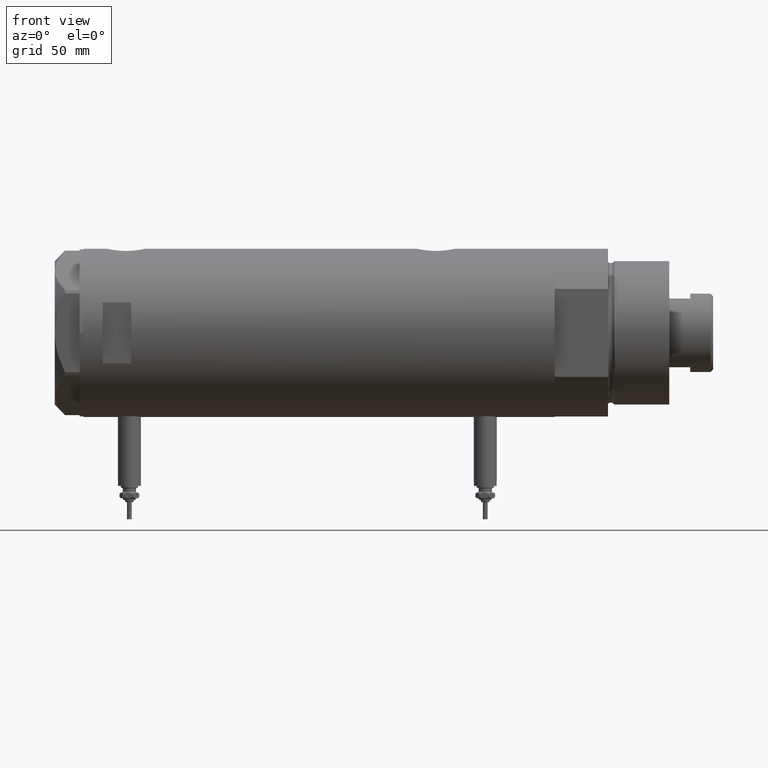
[diagram: clean part render]
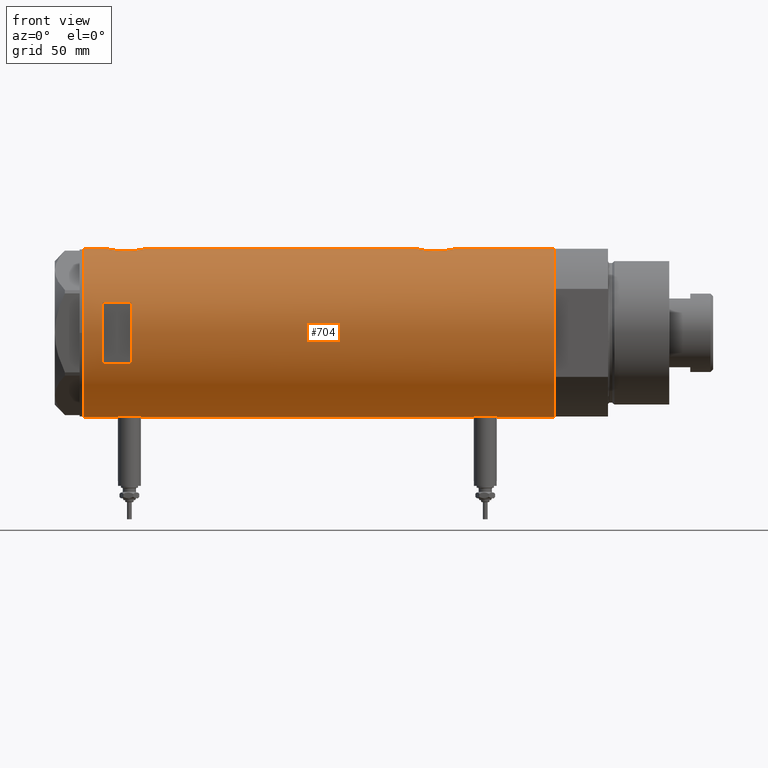
[diagram: same view with one face highlighted and labeled with its STEP entity id]
A machine part, front view. The second image highlights one B-rep face of the part: STEP entity #704.
In plain terms, the highlighted cylindrical surface (partial cylindrical patch) has radius 44 mm, axis along (-1, -0, 0).
Its self-contained STEP definition (entity closure, byte-faithful):
#75 = CARTESIAN_POINT ( 'NONE',  ( 42.89003040145176726, -9.821289533110936887, -59.13508371670006625 ) ) ;
#89 = CARTESIAN_POINT ( 'NONE',  ( -43.80686114384899810, -4.128296917151111245, 94.48984144871687363 ) ) ;
#125 = CARTESIAN_POINT ( 'NONE',  ( -44.00000000000000711, -0.4080709675389188051, 92.95000000000001705 ) ) ;
#138 = CARTESIAN_POINT ( 'NONE',  ( 43.88549648731377317, -3.229309612650767658, 110.3866430248638864 ) ) ;
#163 = CARTESIAN_POINT ( 'NONE',  ( 42.84850870634925712, -10.00026508230968858, -61.75583915121742251 ) ) ;
#178 = CARTESIAN_POINT ( 'NONE',  ( -43.58327167020068771, -6.041691433183236981, 100.8132755078336658 ) ) ;
#187 = CARTESIAN_POINT ( 'NONE',  ( -43.97059312650996787, -1.620278982928820444, -92.93978691385871116 ) ) ;
#196 = CARTESIAN_POINT ( 'NONE',  ( 43.07447880731471201, -8.980869115410033743, 105.3470997020410636 ) ) ;
#215 = CARTESIAN_POINT ( 'NONE',  ( -43.88927795770376861, -3.124736516396338981, 93.78332595076190614 ) ) ;
#216 = VERTEX_POINT ( 'NONE', #1802 ) ;
#231 = CARTESIAN_POINT ( 'NONE',  ( 44.00000000000000000, -3.917104602093038540E-21, 110.9000000000000057 ) ) ;
#252 = CARTESIAN_POINT ( 'NONE',  ( -43.58327167020068060, -6.041691433183235205, -85.28672449216634277 ) ) ;
#271 = CARTESIAN_POINT ( 'NONE',  ( 0.000000000000000000, 0.000000000000000000, 98.20000000000017337 ) ) ;
#290 = DIRECTION ( 'NONE',  ( -0.000000000000000000, -0.000000000000000000, -1.000000000000000000 ) ) ;
#293 = CARTESIAN_POINT ( 'NONE',  ( 43.77905627191557159, -4.445085099228552217, 91.91859165683966637 ) ) ;
#303 = VERTEX_POINT ( 'NONE', #3244 ) ;
#309 = CARTESIAN_POINT ( 'NONE',  ( -43.95404166778756405, -2.020054257598453695, 105.1180894548565590 ) ) ;
#314 = EDGE_CURVE ( 'NONE', #2802, #4871, #2767, .T. ) ;
#323 = B_SPLINE_CURVE_WITH_KNOTS ( 'NONE', 3,
 ( #231, #598, #5245, #2484, #138, #1527, #3838, #3380, #3413, #1071, #3869, #1101, #2513, #4355, #2968, #652, #196, #2053, #1123, #3903, #5757, #1588, #2084, #2997, #3930, #2149, #333, #2611, #3506, #782, #3961, #3130, #4452, #4903, #4093, #815, #3540, #4875, #5370, #293, #1681, #1739, #3996, #2183, #1781, #2250, #5333 ),
 .UNSPECIFIED., .F., .F.,
 ( 4, 2, 2, 2, 2, 2, 2, 2, 2, 2, 1, 2, 2, 2, 2, 2, 2, 2, 2, 2, 2, 2, 2, 4 ),
 ( 0.03136730421198211799, 0.03332724096696803445, 0.03528717772195395785, 0.03626714609944691609, 0.03724711447693987432, 0.03920705123192579078, 0.04018701960941873513, 0.04116698798691167949, 0.04312692474189759595, 0.04410689311939056112, 0.04508686149688351935, 0.04606682987437648452, 0.04704679825186944275, 0.04900673500685531758, 0.05096667176184120629, 0.05292660851682708112, 0.05390657689432002547, 0.05488654527181296983, 0.05586651364930590724, 0.05684648202679884466, 0.05880641878178471949, 0.05978638715927767078, 0.06076635553677062207, 0.06272629229175652465 ),
 .UNSPECIFIED. ) ;
#333 = CARTESIAN_POINT ( 'NONE',  ( 42.92195198079052432, -9.681069926205539744, 98.31067499093484230 ) ) ;
#344 = CARTESIAN_POINT ( 'NONE',  ( -43.97029046111977379, -1.628482392291941805, 105.2375861979205922 ) ) ;
#394 = AXIS2_PLACEMENT_3D ( 'NONE', #271, #3045, #2161 ) ;
#408 = EDGE_CURVE ( 'NONE', #4471, #3344, #2857, .T. ) ;
#445 = ORIENTED_EDGE ( 'NONE', *, *, #2627, .F. ) ;
#453 = DIRECTION ( 'NONE',  ( -0.000000000000000000, 0.000000000000000000, -1.000000000000000000 ) ) ;
#487 = CARTESIAN_POINT ( 'NONE',  ( 43.68175117880464597, -5.289576318274436417, -52.60722456708441541 ) ) ;
#503 = DIRECTION ( 'NONE',  ( 0.000000000000000000, 0.000000000000000000, 1.000000000000000000 ) ) ;
#524 = VERTEX_POINT ( 'NONE', #4628 ) ;
#552 = CARTESIAN_POINT ( 'NONE',  ( -43.83572624786197025, -3.813948911733267888, 94.23163569779339355 ) ) ;
#567 = CARTESIAN_POINT ( 'NONE',  ( -44.00000000000000000, 5.388445781982983516E-15, -93.15000000000000568 ) ) ;
#598 = CARTESIAN_POINT ( 'NONE',  ( 43.99999999999999289, -0.6537011444665493665, 110.9000000000000057 ) ) ;
#625 = CARTESIAN_POINT ( 'NONE',  ( 43.50208939911752282, -6.605519787823896039, -68.61487246254429806 ) ) ;
#639 = CARTESIAN_POINT ( 'NONE',  ( -43.55981666146651321, -6.208773019004409477, 98.37562000806386209 ) ) ;
#652 = CARTESIAN_POINT ( 'NONE',  ( 43.13833976206233700, -8.672905216733552081, 105.9203292102081804 ) ) ;
#667 = CARTESIAN_POINT ( 'NONE',  ( -43.71863308610075904, -4.973248429199019327, 103.0073779012117541 ) ) ;
#684 = CARTESIAN_POINT ( 'NONE',  ( 43.85817087158036287, -3.542878095418171558, -70.45703661115524596 ) ) ;
#685 = VECTOR ( 'NONE', #290, 1000.000000000000000 ) ;
#704 = ADVANCED_FACE ( 'NONE', ( #783, #1294 ), #5528, .T. ) ;
#711 = CARTESIAN_POINT ( 'NONE',  ( -44.00000000000000711, -0.4134142287044829667, -80.65000000000003411 ) ) ;
#746 = LINE ( 'NONE', #4416, #685 ) ;
#761 = CARTESIAN_POINT ( 'NONE',  ( 44.00000000000000000, 0.000000000000000000, 123.2000000000000028 ) ) ;
#782 = CARTESIAN_POINT ( 'NONE',  ( 43.13689707656756411, -8.680169016269172033, 95.89163097888801701 ) ) ;
#783 = FACE_OUTER_BOUND ( 'NONE', #5688, .T. ) ;
#786 = LINE ( 'NONE', #1711, #4758 ) ;
#804 = CARTESIAN_POINT ( 'NONE',  ( -43.64064219598290606, -5.614224114468904681, -89.67685489619474026 ) ) ;
#815 = CARTESIAN_POINT ( 'NONE',  ( 43.50208939911752992, -6.605519787823896039, 93.38512753745570194 ) ) ;
#868 = DIRECTION ( 'NONE',  ( 1.000000000000000000, 0.000000000000000000, 0.000000000000000000 ) ) ;
#956 = ORIENTED_EDGE ( 'NONE', *, *, #4269, .F. ) ;
#1008 = CARTESIAN_POINT ( 'NONE',  ( -43.91347832647110039, -2.763895659397272553, 93.59061350622417308 ) ) ;
#1014 = CARTESIAN_POINT ( 'NONE',  ( -43.95442538259509746, -2.011679190499022774, -92.82093546509779003 ) ) ;
#1019 = CARTESIAN_POINT ( 'NONE',  ( 44.00000000000000000, -1.742910476879209922E-15, -71.10000000000000853 ) ) ;
#1062 = LINE ( 'NONE', #4257, #2548 ) ;
#1071 = CARTESIAN_POINT ( 'NONE',  ( 43.57790701154752355, -6.104591320335876148, 108.8474130089493457 ) ) ;
#1088 = CARTESIAN_POINT ( 'NONE',  ( -43.66524845950890210, -5.422010366683142735, 96.06461956647019917 ) ) ;
#1092 = ORIENTED_EDGE ( 'NONE', *, *, #4060, .F. ) ;
#1101 = CARTESIAN_POINT ( 'NONE',  ( 43.39114022679085281, -7.298186114522533074, 107.7441727949206438 ) ) ;
#1123 = CARTESIAN_POINT ( 'NONE',  ( 42.96858625215907779, -9.471543237354833167, 104.1244477931078194 ) ) ;
#1138 = CARTESIAN_POINT ( 'NONE',  ( -44.00000000000000000, 4.945856149313706956E-16, 105.4500000000000171 ) ) ;
#1143 = ORIENTED_EDGE ( 'NONE', *, *, #1506, .F. ) ;
#1147 = CARTESIAN_POINT ( 'NONE',  ( -43.55388615229803406, -6.249720082677240107, -87.31732514111985211 ) ) ;
#1175 = CARTESIAN_POINT ( 'NONE',  ( -44.00000000000000000, 5.388445916248352830E-15, -123.2000000000000028 ) ) ;
#1179 = CARTESIAN_POINT ( 'NONE',  ( -43.97729452866928312, -1.427712738744850496, 105.2882290744342413 ) ) ;
#1187 = CARTESIAN_POINT ( 'NONE',  ( -43.57664920749031268, -6.089110472216499481, -88.32363086869412427 ) ) ;
#1224 = CARTESIAN_POINT ( 'NONE',  ( 0.000000000000000000, 0.000000000000000000, -123.2000000000000028 ) ) ;
#1231 = CARTESIAN_POINT ( 'NONE',  ( 44.00000000000000000, -3.917167710965456221E-21, -51.10000000000000853 ) ) ;
#1245 = CARTESIAN_POINT ( 'NONE',  ( -43.71916086763248899, -4.968610719017467758, -90.71335998854627292 ) ) ;
#1262 = DIRECTION ( 'NONE',  ( 0.000000000000000000, 0.000000000000000000, 1.000000000000000000 ) ) ;
#1281 = CARTESIAN_POINT ( 'NONE',  ( -43.91398925748691795, -2.775454910411441656, -81.28529224318936031 ) ) ;
#1294 = FACE_BOUND ( 'NONE', #4325, .T. ) ;
#1315 = CARTESIAN_POINT ( 'NONE',  ( 0.000000000000000000, 0.000000000000000000, 113.1999999999999886 ) ) ;
#1391 = CARTESIAN_POINT ( 'NONE',  ( 43.80655905412561424, -4.132395729537631901, -51.98794673806236233 ) ) ;
#1440 = CARTESIAN_POINT ( 'NONE',  ( 42.96858625215907779, -9.471543237354843825, -57.87555220689220192 ) ) ;
#1455 = CARTESIAN_POINT ( 'NONE',  ( -43.57636709704395628, -6.091127289750674301, 100.6149932566099068 ) ) ;
#1458 = VECTOR ( 'NONE', #5979, 1000.000000000000000 ) ;
#1506 = EDGE_CURVE ( 'NONE', #216, #5897, #3206, .T. ) ;
#1514 = CARTESIAN_POINT ( 'NONE',  ( -43.58358352828437177, -6.039443007521655638, 97.57836901614263070 ) ) ;
#1515 = VERTEX_POINT ( 'NONE', #1231 ) ;
#1527 = CARTESIAN_POINT ( 'NONE',  ( 43.80655905412561424, -4.132395729537624796, 110.0120532619376235 ) ) ;
#1544 = AXIS2_PLACEMENT_3D ( 'NONE', #1315, #453, #868 ) ;
#1559 = CARTESIAN_POINT ( 'NONE',  ( 43.94187300917954531, -2.283844398366606132, -70.84126046817048916 ) ) ;
#1575 = CARTESIAN_POINT ( 'NONE',  ( -43.64013512596971367, -5.618144550806293047, 101.9688425437316539 ) ) ;
#1588 = CARTESIAN_POINT ( 'NONE',  ( 42.86761451923558042, -9.918101748202657220, 102.2186752354962636 ) ) ;
#1606 = CARTESIAN_POINT ( 'NONE',  ( -43.58358352828439308, -6.039443007521657414, -88.52163098385740625 ) ) ;
#1613 = CARTESIAN_POINT ( 'NONE',  ( 0.000000000000000000, 0.000000000000000000, -123.2000000000000028 ) ) ;
#1614 = CARTESIAN_POINT ( 'NONE',  ( 42.86369059155249062, -9.935849517229280892, -62.40637410018199915 ) ) ;
#1662 = CIRCLE ( 'NONE', #5164, 44.00000000000000000 ) ;
#1668 = DIRECTION ( 'NONE',  ( 0.000000000000000000, 0.000000000000000000, 1.000000000000000000 ) ) ;
#1673 = CARTESIAN_POINT ( 'NONE',  ( -43.83572624786197025, -3.813948911733269664, -91.86836430220658656 ) ) ;
#1681 = CARTESIAN_POINT ( 'NONE',  ( 43.85817087158036998, -3.542878095418176887, 91.54296338884479667 ) ) ;
#1700 = CARTESIAN_POINT ( 'NONE',  ( -43.66469451360046605, -5.426465874727614214, -83.77225408135791440 ) ) ;
#1711 = CARTESIAN_POINT ( 'NONE',  ( 44.00000000000000000, 0.000000000000000000, -123.2000000000000028 ) ) ;
#1727 = CARTESIAN_POINT ( 'NONE',  ( -43.64013512596970656, -5.618144550806293047, -84.13115745626835462 ) ) ;
#1739 = CARTESIAN_POINT ( 'NONE',  ( 43.88203303552250389, -3.235230624304763047, 91.43207386936016690 ) ) ;
#1759 = ORIENTED_EDGE ( 'NONE', *, *, #2605, .T. ) ;
#1781 = CARTESIAN_POINT ( 'NONE',  ( 43.98503203903425884, -1.316644100880397072, 90.96527044704372145 ) ) ;
#1802 = CARTESIAN_POINT ( 'NONE',  ( -15.96871942267132027, -40.99999999999999289, 98.19999999999998863 ) ) ;
#1844 = CARTESIAN_POINT ( 'NONE',  ( 43.98543813568861793, -1.304985013906732716, -51.16346933726119772 ) ) ;
#1874 = CARTESIAN_POINT ( 'NONE',  ( 43.39114022679083860, -7.298186114522538404, -54.25582720507937751 ) ) ;
#1899 = CARTESIAN_POINT ( 'NONE',  ( 43.13833976206234411, -8.672905216733562739, -56.07967078979188358 ) ) ;
#1917 = CARTESIAN_POINT ( 'NONE',  ( -44.00000000000000000, 5.388445916248352830E-15, -123.2000000000000028 ) ) ;
#1919 = CARTESIAN_POINT ( 'NONE',  ( -43.99432382855035684, -0.8140126287075731826, -93.11042166816913834 ) ) ;
#1943 = CARTESIAN_POINT ( 'NONE',  ( -43.71916086763249609, -4.968610719017477528, 95.38664001145379245 ) ) ;
#1950 = DIRECTION ( 'NONE',  ( 0.000000000000000000, 0.000000000000000000, 1.000000000000000000 ) ) ;
#1977 = CARTESIAN_POINT ( 'NONE',  ( -43.95442538259509035, -2.011679190499021441, 93.27906453490220429 ) ) ;
#1980 = B_SPLINE_CURVE_WITH_KNOTS ( 'NONE', 3,
 ( #2011, #3808, #1919, #2506, #187, #1014, #3774, #2044, #5634, #4718, #1673, #4411, #4923, #1245, #2172, #804, #3493, #4959, #1606, #1187, #2670, #1147, #2600, #2570, #4046, #252, #3530, #5393, #1727, #1700, #4014, #3459, #5872, #3558, #3985, #1281, #5776, #5425, #3152, #4511, #4440, #711, #5805 ),
 .UNSPECIFIED., .F., .F.,
 ( 4, 2, 2, 1, 2, 2, 2, 2, 2, 2, 2, 2, 2, 2, 2, 2, 2, 2, 2, 2, 2, 4 ),
 ( 0.01956509074799517994, 0.02078761141254040559, 0.02139887174481301668, 0.02201013207708562777, 0.02262139240935823886, 0.02323265274163085342, 0.02445517340617609989, 0.02567769407072134635, 0.02690021473526659282, 0.02751147506753921432, 0.02812273539981183929, 0.02934525606435712738, 0.03056777672890241548, 0.03117903706117505780, 0.03179029739344770011, 0.03301281805799302638, 0.03423533872253835264, 0.03545785938708367196, 0.03668038005162899823, 0.03729164038390166136, 0.03790290071617432449, 0.03912542138071965075 ),
 .UNSPECIFIED. ) ;
#2003 = CARTESIAN_POINT ( 'NONE',  ( -43.97059312650997498, -1.620278982928819556, 93.16021308614132579 ) ) ;
#2011 = CARTESIAN_POINT ( 'NONE',  ( -44.00000000000000000, 5.388445781982983516E-15, -93.15000000000000568 ) ) ;
#2019 = CARTESIAN_POINT ( 'NONE',  ( 42.92195198079052432, -9.681069926205545073, -63.68932500906514349 ) ) ;
#2035 = CARTESIAN_POINT ( 'NONE',  ( -43.59959777593762453, -5.922725608094073557, 101.2064931121741722 ) ) ;
#2044 = CARTESIAN_POINT ( 'NONE',  ( -43.91347832647111460, -2.763895659397271221, -92.50938649377584966 ) ) ;
#2053 = CARTESIAN_POINT ( 'NONE',  ( 42.99316244204494808, -9.359736474891649394, 104.4360302003217527 ) ) ;
#2069 = CARTESIAN_POINT ( 'NONE',  ( -43.80623767923739820, -4.134861581628530125, 103.9043636726069764 ) ) ;
#2083 = DIRECTION ( 'NONE',  ( 0.000000000000000000, 0.000000000000000000, 1.000000000000000000 ) ) ;
#2084 = CARTESIAN_POINT ( 'NONE',  ( 42.85249883256043546, -9.983208936152870194, 101.5657221654182081 ) ) ;
#2149 = CARTESIAN_POINT ( 'NONE',  ( 42.86369059155247641, -9.935849517229275563, 99.59362589981802216 ) ) ;
#2161 = DIRECTION ( 'NONE',  ( 1.776356839400250465E-15, 1.000000000000000000, 4.731064025391292434E-15 ) ) ;
#2172 = CARTESIAN_POINT ( 'NONE',  ( -43.66524845950889500, -5.422010366683132965, -90.03538043352982356 ) ) ;
#2183 = CARTESIAN_POINT ( 'NONE',  ( 43.94187300917955952, -2.283844398366603912, 91.15873953182952505 ) ) ;
#2250 = CARTESIAN_POINT ( 'NONE',  ( 44.00000000000000000, -0.6628808997490054367, 90.90000000000001990 ) ) ;
#2282 = CARTESIAN_POINT ( 'NONE',  ( 44.00000000000000000, 0.000000000000000000, -123.2000000000000028 ) ) ;
#2342 = CARTESIAN_POINT ( 'NONE',  ( 43.57790701154751645, -6.104591320335877924, -53.15258699105065432 ) ) ;
#2343 = ORIENTED_EDGE ( 'NONE', *, *, #3795, .T. ) ;
#2374 = CARTESIAN_POINT ( 'NONE',  ( 43.27890888111422640, -7.936045294464967093, -55.00681563342806868 ) ) ;
#2397 = CARTESIAN_POINT ( 'NONE',  ( 44.00000000000000000, -0.6537011444665492554, -51.09999999999999432 ) ) ;
#2410 = CARTESIAN_POINT ( 'NONE',  ( -43.74870614644074607, -4.704745394280565485, 95.06553512659974103 ) ) ;
#2458 = CARTESIAN_POINT ( 'NONE',  ( 43.07321175413309078, -8.986876637256996148, -65.53428201988756996 ) ) ;
#2474 = CARTESIAN_POINT ( 'NONE',  ( -43.64064219598290606, -5.614224114468903792, 96.42314510380529669 ) ) ;
#2484 = CARTESIAN_POINT ( 'NONE',  ( 43.92776409818817740, -2.602555515054468582, 110.5780334928707447 ) ) ;
#2506 = CARTESIAN_POINT ( 'NONE',  ( -43.97755541524607281, -1.419649999726221967, -92.99011143923634393 ) ) ;
#2513 = CARTESIAN_POINT ( 'NONE',  ( 43.35323102813806884, -7.519449998269471358, 107.5004228928426784 ) ) ;
#2530 = CARTESIAN_POINT ( 'NONE',  ( -43.74813644611200658, -4.709999724143498767, 103.3284404394322848 ) ) ;
#2548 = VECTOR ( 'NONE', #1950, 1000.000000000000000 ) ;
#2570 = CARTESIAN_POINT ( 'NONE',  ( -43.55964145621771877, -6.209995197331128480, -86.08476386616429465 ) ) ;
#2594 = CARTESIAN_POINT ( 'NONE',  ( -43.91398925748692506, -2.775454910411446097, 104.8147077568106482 ) ) ;
#2600 = CARTESIAN_POINT ( 'NONE',  ( -43.55380622335315621, -6.250277076879245719, -86.49110166609810335 ) ) ;
#2605 = EDGE_CURVE ( 'NONE', #1515, #4926, #5521, .T. ) ;
#2611 = CARTESIAN_POINT ( 'NONE',  ( 42.96573602780769363, -9.487415353952517449, 97.67265455416384157 ) ) ;
#2627 = EDGE_CURVE ( 'NONE', #524, #3015, #4180, .T. ) ;
#2628 = CARTESIAN_POINT ( 'NONE',  ( -43.99417593155911987, -0.8219945290704643304, 105.4093810241296296 ) ) ;
#2670 = CARTESIAN_POINT ( 'NONE',  ( -43.55981666146652742, -6.208773019004409477, -87.72437999193618907 ) ) ;
#2733 = LINE ( 'NONE', #2282, #2748 ) ;
#2745 = CARTESIAN_POINT ( 'NONE',  ( 42.84860178791322483, -9.999866241079299556, -60.76603617305838156 ) ) ;
#2748 = VECTOR ( 'NONE', #3959, 1000.000000000000000 ) ;
#2760 = ORIENTED_EDGE ( 'NONE', *, *, #5250, .F. ) ;
#2767 = LINE ( 'NONE', #4609, #4243 ) ;
#2802 = VERTEX_POINT ( 'NONE', #1175 ) ;
#2857 = B_SPLINE_CURVE_WITH_KNOTS ( 'NONE', 3,
 ( #4371, #125, #2928, #5176, #2003, #1977, #5685, #1008, #215, #2980, #552, #89, #2410, #1943, #1088, #2474, #5230, #5660, #1514, #3367, #639, #3853, #5714, #4338, #1455, #178, #2035, #3885, #1575, #5292, #667, #2530, #2069, #5627, #3320, #2594, #3076, #309, #344, #1179, #2628, #3011, #1138 ),
 .UNSPECIFIED., .F., .F.,
 ( 4, 2, 2, 1, 2, 2, 2, 2, 2, 2, 2, 2, 2, 2, 2, 2, 2, 2, 2, 2, 2, 4 ),
 ( 0.01956509074799517994, 0.02078761141254040559, 0.02139887174481301668, 0.02201013207708562777, 0.02262139240935823886, 0.02323265274163085342, 0.02445517340617609642, 0.02567769407072134288, 0.02690021473526658935, 0.02751147506753921085, 0.02812273539981183582, 0.02934525606435712392, 0.03056777672890240855, 0.03117903706117505433, 0.03179029739344770011, 0.03301281805799302638, 0.03423533872253834570, 0.03545785938708367196, 0.03668038005162899129, 0.03729164038390166136, 0.03790290071617431755, 0.03912542138071964382 ),
 .UNSPECIFIED. ) ;
#2884 = CARTESIAN_POINT ( 'NONE',  ( 42.96573602780769363, -9.487415353952515673, -64.32734544583620107 ) ) ;
#2912 = CARTESIAN_POINT ( 'NONE',  ( 43.39001814939470592, -7.304817421876451888, -67.93703460671676453 ) ) ;
#2914 = VERTEX_POINT ( 'NONE', #761 ) ;
#2928 = CARTESIAN_POINT ( 'NONE',  ( -43.99432382855036394, -0.8140126287075738487, 92.98957833183087018 ) ) ;
#2931 = VECTOR ( 'NONE', #4802, 1000.000000000000000 ) ;
#2945 = CARTESIAN_POINT ( 'NONE',  ( 43.92391465552168484, -2.605621203777297001, -70.76018015101780634 ) ) ;
#2968 = CARTESIAN_POINT ( 'NONE',  ( 43.24269204559828239, -8.130405600641543273, 106.7311450280699319 ) ) ;
#2980 = CARTESIAN_POINT ( 'NONE',  ( -43.87623998657198143, -3.302247739865013632, 93.88965656480257849 ) ) ;
#2997 = CARTESIAN_POINT ( 'NONE',  ( 42.84860178791322483, -9.999866241079297779, 101.2339638269416326 ) ) ;
#3011 = CARTESIAN_POINT ( 'NONE',  ( -44.00000000000000711, -0.4134142287044841879, 105.4500000000000313 ) ) ;
#3015 = VERTEX_POINT ( 'NONE', #5166 ) ;
#3018 = CARTESIAN_POINT ( 'NONE',  ( 44.00000000000000000, 0.000000000000000000, -123.2000000000000028 ) ) ;
#3028 = DIRECTION ( 'NONE',  ( 1.000000000000000000, 0.000000000000000000, 0.000000000000000000 ) ) ;
#3045 = DIRECTION ( 'NONE',  ( -0.000000000000000000, -4.625929269271481378E-15, 1.000000000000000000 ) ) ;
#3060 = VERTEX_POINT ( 'NONE', #3818 ) ;
#3075 = B_SPLINE_CURVE_WITH_KNOTS ( 'NONE', 3,
 ( #4622, #2397, #1844, #4592, #4134, #1391, #3257, #4649, #487, #2342, #4189, #1874, #3733, #2374, #5591, #1899, #3753, #5612, #1440, #4237, #75, #5641, #3333, #2745, #163, #1614, #2019, #2884, #2458, #4322, #4723, #4294, #3813, #2912, #3352, #625, #3469, #4840, #4784, #5729, #684, #5302, #2945, #1559, #4753, #5212, #1019 ),
 .UNSPECIFIED., .F., .F.,
 ( 4, 2, 2, 2, 2, 2, 2, 2, 2, 2, 1, 2, 2, 2, 2, 2, 2, 2, 2, 2, 2, 2, 2, 4 ),
 ( 0.03136730421198213187, 0.03332724096696806221, 0.03528717772195399255, 0.03626714609944695078, 0.03724711447693991595, 0.03920705123192583241, 0.04018701960941878371, 0.04116698798691173500, 0.04312692474189763758, 0.04410689311939058888, 0.04508686149688354017, 0.04606682987437649146, 0.04704679825186944275, 0.04900673500685532452, 0.05096667176184120629, 0.05292660851682708806, 0.05390657689432004629, 0.05488654527181299758, 0.05586651364930594887, 0.05684648202679890711, 0.05880641878178481663, 0.05978638715927775404, 0.06076635553677070534, 0.06272629229175658017 ),
 .UNSPECIFIED. ) ;
#3076 = CARTESIAN_POINT ( 'NONE',  ( -43.94477385411916970, -2.211843467998030111, 105.0490722992286692 ) ) ;
#3111 = VERTEX_POINT ( 'NONE', #4759 ) ;
#3130 = CARTESIAN_POINT ( 'NONE',  ( 43.27861175590268061, -7.937636171351964975, 94.80897132009003769 ) ) ;
#3152 = CARTESIAN_POINT ( 'NONE',  ( -43.97029046111975958, -1.628482392291955128, -80.86241380207945895 ) ) ;
#3206 = CIRCLE ( 'NONE', #394, 44.00000000000000000 ) ;
#3216 = LINE ( 'NONE', #3697, #1458 ) ;
#3244 = CARTESIAN_POINT ( 'NONE',  ( 44.00000000000000000, -1.742910476879209922E-15, -71.10000000000000853 ) ) ;
#3257 = CARTESIAN_POINT ( 'NONE',  ( 43.77763691689010983, -4.427538730370041087, -52.12757287791930594 ) ) ;
#3292 = ORIENTED_EDGE ( 'NONE', *, *, #4889, .F. ) ;
#3298 = EDGE_CURVE ( 'NONE', #5284, #303, #786, .T. ) ;
#3320 = CARTESIAN_POINT ( 'NONE',  ( -43.88932649443422918, -3.137583818903200594, 104.6209903805954298 ) ) ;
#3333 = CARTESIAN_POINT ( 'NONE',  ( 42.85249883256042835, -9.983208936152877300, -60.43427783458179192 ) ) ;
#3344 = VERTEX_POINT ( 'NONE', #5821 ) ;
#3352 = CARTESIAN_POINT ( 'NONE',  ( 43.46477581456304051, -6.845969322274835456, -68.39644460123312797 ) ) ;
#3367 = CARTESIAN_POINT ( 'NONE',  ( -43.57664920749030557, -6.089110472216500369, 97.77636913130585583 ) ) ;
#3380 = CARTESIAN_POINT ( 'NONE',  ( 43.71528002050701645, -5.005885132985632424, 109.5630630671448813 ) ) ;
#3413 = CARTESIAN_POINT ( 'NONE',  ( 43.68175117880464597, -5.289576318274434641, 109.3927754329155846 ) ) ;
#3459 = CARTESIAN_POINT ( 'NONE',  ( -43.74813644611201369, -4.709999724143497879, -82.77155956056772368 ) ) ;
#3469 = CARTESIAN_POINT ( 'NONE',  ( 43.57553740812844723, -6.102230194686620202, -69.02899655988672123 ) ) ;
#3493 = CARTESIAN_POINT ( 'NONE',  ( -43.60943079847655213, -5.850114217193378430, -89.10921875926607072 ) ) ;
#3506 = CARTESIAN_POINT ( 'NONE',  ( 43.07321175413310499, -8.986876637256992595, 96.46571798011248688 ) ) ;
#3530 = CARTESIAN_POINT ( 'NONE',  ( -43.59959777593761743, -5.922725608094073557, -84.89350688782587895 ) ) ;
#3540 = CARTESIAN_POINT ( 'NONE',  ( 43.57553740812846144, -6.102230194686623754, 92.97100344011330719 ) ) ;
#3558 = CARTESIAN_POINT ( 'NONE',  ( -43.83513771791773905, -3.820747781112549646, -81.93678981703629916 ) ) ;
#3587 = VECTOR ( 'NONE', #5033, 1000.000000000000000 ) ;
#3642 = DIRECTION ( 'NONE',  ( 0.000000000000000000, 0.000000000000000000, 1.000000000000000000 ) ) ;
#3663 = EDGE_CURVE ( 'NONE', #3015, #216, #746, .T. ) ;
#3697 = CARTESIAN_POINT ( 'NONE',  ( 15.96871942267131672, -40.99999999999999289, -123.2000000000000028 ) ) ;
#3733 = CARTESIAN_POINT ( 'NONE',  ( 43.35323102813806173, -7.519449998269467805, -54.49957710715733583 ) ) ;
#3753 = CARTESIAN_POINT ( 'NONE',  ( 43.07447880731470491, -8.980869115410037296, -56.65290029795897198 ) ) ;
#3771 = CARTESIAN_POINT ( 'NONE',  ( 44.00000000000000000, -3.917104602093038540E-21, 110.9000000000000057 ) ) ;
#3774 = CARTESIAN_POINT ( 'NONE',  ( -43.93596008603758207, -2.395372424984026694, -92.68349180530613296 ) ) ;
#3795 = EDGE_CURVE ( 'NONE', #4179, #2914, #2733, .T. ) ;
#3808 = CARTESIAN_POINT ( 'NONE',  ( -43.99999999999998579, -0.4080709675389182500, -93.15000000000000568 ) ) ;
#3813 = CARTESIAN_POINT ( 'NONE',  ( 43.35257225115238100, -7.523216248090028202, -67.69605303592346957 ) ) ;
#3818 = CARTESIAN_POINT ( 'NONE',  ( -44.00000000000000000, 4.742402805755500961E-16, -80.65000000000000568 ) ) ;
#3838 = CARTESIAN_POINT ( 'NONE',  ( 43.77763691689008851, -4.427538730370032205, 109.8724271220806941 ) ) ;
#3853 = CARTESIAN_POINT ( 'NONE',  ( -43.55388615229804117, -6.249720082677240107, 98.78267485888017063 ) ) ;
#3856 = EDGE_CURVE ( 'NONE', #2802, #5284, #5640, .T. ) ;
#3869 = CARTESIAN_POINT ( 'NONE',  ( 43.50370990764398016, -6.606474645717128169, 108.4352093528488865 ) ) ;
#3885 = CARTESIAN_POINT ( 'NONE',  ( -43.60904414879381363, -5.852991024272606424, 101.4015631665291437 ) ) ;
#3903 = CARTESIAN_POINT ( 'NONE',  ( 42.92612181419235640, -9.662173761604311295, 103.4979978960971465 ) ) ;
#3914 = DIRECTION ( 'NONE',  ( 1.000000000000000000, 0.000000000000000000, 0.000000000000000000 ) ) ;
#3930 = CARTESIAN_POINT ( 'NONE',  ( 42.84850870634927844, -10.00026508230968147, 100.2441608487826130 ) ) ;
#3941 = CARTESIAN_POINT ( 'NONE',  ( 0.000000000000000000, 0.000000000000000000, 123.2000000000000028 ) ) ;
#3959 = DIRECTION ( 'NONE',  ( 0.000000000000000000, 0.000000000000000000, 1.000000000000000000 ) ) ;
#3961 = CARTESIAN_POINT ( 'NONE',  ( 43.24192112218942441, -8.134529092006104634, 95.07447770135891574 ) ) ;
#3985 = CARTESIAN_POINT ( 'NONE',  ( -43.88932649443424339, -3.137583818903200594, -81.47900961940457876 ) ) ;
#3996 = CARTESIAN_POINT ( 'NONE',  ( 43.92391465552169905, -2.605621203777302775, 91.23981984898226472 ) ) ;
#4014 = CARTESIAN_POINT ( 'NONE',  ( -43.71863308610073773, -4.973248429199020215, -83.09262209878829708 ) ) ;
#4025 = CARTESIAN_POINT ( 'NONE',  ( 44.00000000000000000, -2.119006702872526837E-15, 90.90000000000000568 ) ) ;
#4046 = CARTESIAN_POINT ( 'NONE',  ( -43.57636709704393496, -6.091127289750673413, -85.48500674339014438 ) ) ;
#4060 = EDGE_CURVE ( 'NONE', #5897, #524, #3216, .T. ) ;
#4093 = CARTESIAN_POINT ( 'NONE',  ( 43.46477581456304051, -6.845969322274853219, 93.60355539876690045 ) ) ;
#4095 = AXIS2_PLACEMENT_3D ( 'NONE', #1613, #2083, #3028 ) ;
#4134 = CARTESIAN_POINT ( 'NONE',  ( 43.88549648731375896, -3.229309612650775652, -51.61335697513614207 ) ) ;
#4161 = EDGE_CURVE ( 'NONE', #3060, #4471, #5632, .T. ) ;
#4179 = VERTEX_POINT ( 'NONE', #3771 ) ;
#4180 = CIRCLE ( 'NONE', #1544, 44.00000000000000000 ) ;
#4188 = ORIENTED_EDGE ( 'NONE', *, *, #4834, .F. ) ;
#4189 = CARTESIAN_POINT ( 'NONE',  ( 43.50370990764397305, -6.606474645717129945, -53.56479064715112770 ) ) ;
#4237 = CARTESIAN_POINT ( 'NONE',  ( 42.92612181419236350, -9.662173761604318400, -58.50200210390288191 ) ) ;
#4243 = VECTOR ( 'NONE', #503, 1000.000000000000000 ) ;
#4257 = CARTESIAN_POINT ( 'NONE',  ( -44.00000000000000000, 5.388445916248352830E-15, -123.2000000000000028 ) ) ;
#4269 = EDGE_CURVE ( 'NONE', #3344, #3111, #1062, .T. ) ;
#4286 = ORIENTED_EDGE ( 'NONE', *, *, #3856, .T. ) ;
#4294 = CARTESIAN_POINT ( 'NONE',  ( 43.27861175590267351, -7.937636171351968528, -67.19102867990997652 ) ) ;
#4322 = CARTESIAN_POINT ( 'NONE',  ( 43.13689707656755701, -8.680169016269177362, -66.10836902111202562 ) ) ;
#4325 = EDGE_LOOP ( 'NONE', ( #1143, #4445, #445, #1092 ) ) ;
#4338 = CARTESIAN_POINT ( 'NONE',  ( -43.55964145621771877, -6.209995197331127592, 100.0152361338357565 ) ) ;
#4355 = CARTESIAN_POINT ( 'NONE',  ( 43.27890888111421219, -7.936045294464967093, 106.9931843665719100 ) ) ;
#4371 = CARTESIAN_POINT ( 'NONE',  ( -44.00000000000000000, 5.388445781982983516E-15, 92.95000000000000284 ) ) ;
#4411 = CARTESIAN_POINT ( 'NONE',  ( -43.80686114384899810, -4.128296917151111245, -91.61015855128310648 ) ) ;
#4416 = CARTESIAN_POINT ( 'NONE',  ( -15.96871942267131672, -40.99999999999999289, -123.2000000000000028 ) ) ;
#4440 = CARTESIAN_POINT ( 'NONE',  ( -43.99417593155913409, -0.8219945290704695484, -80.69061897587040733 ) ) ;
#4445 = ORIENTED_EDGE ( 'NONE', *, *, #3663, .F. ) ;
#4452 = CARTESIAN_POINT ( 'NONE',  ( 43.35257225115236679, -7.523216248090024649, 94.30394696407654465 ) ) ;
#4461 = ORIENTED_EDGE ( 'NONE', *, *, #3298, .T. ) ;
#4471 = VERTEX_POINT ( 'NONE', #5023 ) ;
#4511 = CARTESIAN_POINT ( 'NONE',  ( -43.97729452866927602, -1.427712738744856047, -80.81177092556575303 ) ) ;
#4592 = CARTESIAN_POINT ( 'NONE',  ( 43.92776409818818451, -2.602555515054471247, -51.42196650712919137 ) ) ;
#4609 = CARTESIAN_POINT ( 'NONE',  ( -44.00000000000000000, 5.388445916248352830E-15, -123.2000000000000028 ) ) ;
#4622 = CARTESIAN_POINT ( 'NONE',  ( 44.00000000000000000, -3.917167710965456221E-21, -51.10000000000000853 ) ) ;
#4628 = CARTESIAN_POINT ( 'NONE',  ( 15.96871942267132027, -40.99999999999999289, 113.1999999999999886 ) ) ;
#4649 = CARTESIAN_POINT ( 'NONE',  ( 43.71528002050703066, -5.005885132985644859, -52.43693693285515423 ) ) ;
#4693 = ORIENTED_EDGE ( 'NONE', *, *, #314, .F. ) ;
#4718 = CARTESIAN_POINT ( 'NONE',  ( -43.87623998657197433, -3.302247739865014964, -92.21034343519743004 ) ) ;
#4723 = CARTESIAN_POINT ( 'NONE',  ( 43.24192112218941730, -8.134529092006104634, -66.92552229864111268 ) ) ;
#4732 = CARTESIAN_POINT ( 'NONE',  ( 44.00000000000000000, 0.000000000000000000, -123.2000000000000028 ) ) ;
#4753 = CARTESIAN_POINT ( 'NONE',  ( 43.98503203903424463, -1.316644100880400403, -71.03472955295633540 ) ) ;
#4758 = VECTOR ( 'NONE', #1262, 1000.000000000000000 ) ;
#4759 = CARTESIAN_POINT ( 'NONE',  ( -44.00000000000000000, 5.388445916248352830E-15, 123.2000000000000028 ) ) ;
#4784 = CARTESIAN_POINT ( 'NONE',  ( 43.71626298452613923, -5.019105827807316622, -69.77413437979598143 ) ) ;
#4802 = DIRECTION ( 'NONE',  ( 0.000000000000000000, 0.000000000000000000, 1.000000000000000000 ) ) ;
#4834 = EDGE_CURVE ( 'NONE', #1515, #303, #3075, .T. ) ;
#4840 = CARTESIAN_POINT ( 'NONE',  ( 43.61181667275830165, -5.838254419127786754, -69.22544109417493985 ) ) ;
#4871 = VERTEX_POINT ( 'NONE', #567 ) ;
#4875 = CARTESIAN_POINT ( 'NONE',  ( 43.61181667275830875, -5.838254419127776096, 92.77455890582506015 ) ) ;
#4889 = EDGE_CURVE ( 'NONE', #4179, #4926, #323, .T. ) ;
#4903 = CARTESIAN_POINT ( 'NONE',  ( 43.39001814939471302, -7.304817421876466987, 94.06296539328327810 ) ) ;
#4923 = CARTESIAN_POINT ( 'NONE',  ( -43.74870614644073896, -4.704745394280564597, -91.03446487340028170 ) ) ;
#4926 = VERTEX_POINT ( 'NONE', #4025 ) ;
#4959 = CARTESIAN_POINT ( 'NONE',  ( -43.59994860325051036, -5.920144153815573240, -88.91406357569761099 ) ) ;
#5023 = CARTESIAN_POINT ( 'NONE',  ( -44.00000000000000000, 5.388445781982983516E-15, 92.95000000000000284 ) ) ;
#5033 = DIRECTION ( 'NONE',  ( 0.000000000000000000, 0.000000000000000000, 1.000000000000000000 ) ) ;
#5106 = ORIENTED_EDGE ( 'NONE', *, *, #4161, .F. ) ;
#5163 = ORIENTED_EDGE ( 'NONE', *, *, #408, .F. ) ;
#5164 = AXIS2_PLACEMENT_3D ( 'NONE', #3941, #1668, #3914 ) ;
#5166 = CARTESIAN_POINT ( 'NONE',  ( -15.96871942267132027, -40.99999999999999289, 113.1999999999999886 ) ) ;
#5176 = CARTESIAN_POINT ( 'NONE',  ( -43.97755541524607992, -1.419649999726222633, 93.10988856076367881 ) ) ;
#5212 = CARTESIAN_POINT ( 'NONE',  ( 43.99999999999999289, -0.6628808997490076571, -71.09999999999999432 ) ) ;
#5230 = CARTESIAN_POINT ( 'NONE',  ( -43.60943079847654502, -5.850114217193380206, 96.99078124073395202 ) ) ;
#5245 = CARTESIAN_POINT ( 'NONE',  ( 43.98543813568863214, -1.304985013906734714, 110.8365306627388378 ) ) ;
#5250 = EDGE_CURVE ( 'NONE', #4871, #3060, #1980, .T. ) ;
#5284 = VERTEX_POINT ( 'NONE', #3018 ) ;
#5292 = CARTESIAN_POINT ( 'NONE',  ( -43.66469451360045895, -5.426465874727613325, 102.3277459186421083 ) ) ;
#5302 = CARTESIAN_POINT ( 'NONE',  ( 43.88203303552250389, -3.235230624304761715, -70.56792613063983310 ) ) ;
#5316 = AXIS2_PLACEMENT_3D ( 'NONE', #1224, #3642, #5499 ) ;
#5333 = CARTESIAN_POINT ( 'NONE',  ( 44.00000000000000000, -2.119006702872526837E-15, 90.90000000000000568 ) ) ;
#5370 = CARTESIAN_POINT ( 'NONE',  ( 43.71626298452613923, -5.019105827807311293, 92.22586562020403278 ) ) ;
#5393 = CARTESIAN_POINT ( 'NONE',  ( -43.60904414879381363, -5.852991024272605536, -84.69843683347096430 ) ) ;
#5425 = CARTESIAN_POINT ( 'NONE',  ( -43.95404166778754984, -2.020054257598467018, -80.98191054514347798 ) ) ;
#5499 = DIRECTION ( 'NONE',  ( 1.000000000000000000, 0.000000000000000000, 0.000000000000000000 ) ) ;
#5521 = LINE ( 'NONE', #4732, #3587 ) ;
#5528 = CYLINDRICAL_SURFACE ( 'NONE', #5316, 44.00000000000000000 ) ;
#5591 = CARTESIAN_POINT ( 'NONE',  ( 43.24269204559828950, -8.130405600641552155, -55.26885497193006103 ) ) ;
#5612 = CARTESIAN_POINT ( 'NONE',  ( 42.99316244204495518, -9.359736474891656499, -57.56396979967825445 ) ) ;
#5627 = CARTESIAN_POINT ( 'NONE',  ( -43.83513771791773195, -3.820747781112552754, 104.1632101829637378 ) ) ;
#5632 = LINE ( 'NONE', #1917, #2931 ) ;
#5634 = CARTESIAN_POINT ( 'NONE',  ( -43.88927795770376861, -3.124736516396338093, -92.31667404923808817 ) ) ;
#5640 = CIRCLE ( 'NONE', #4095, 44.00000000000000000 ) ;
#5641 = CARTESIAN_POINT ( 'NONE',  ( 42.86761451923558042, -9.918101748202660772, -59.78132476450375066 ) ) ;
#5660 = CARTESIAN_POINT ( 'NONE',  ( -43.59994860325051036, -5.920144153815573240, 97.18593642430241175 ) ) ;
#5685 = CARTESIAN_POINT ( 'NONE',  ( -43.93596008603759628, -2.395372424984027138, 93.41650819469390399 ) ) ;
#5688 = EDGE_LOOP ( 'NONE', ( #4693, #4286, #4461, #4188, #1759, #3292, #2343, #5765, #956, #5163, #5106, #2760 ) ) ;
#5714 = CARTESIAN_POINT ( 'NONE',  ( -43.55380622335317042, -6.250277076879246607, 99.60889833390191939 ) ) ;
#5729 = CARTESIAN_POINT ( 'NONE',  ( 43.77905627191558580, -4.445085099228549552, -70.08140834316036205 ) ) ;
#5757 = CARTESIAN_POINT ( 'NONE',  ( 42.89003040145177437, -9.821289533110936887, 102.8649162832999338 ) ) ;
#5765 = ORIENTED_EDGE ( 'NONE', *, *, #5888, .F. ) ;
#5776 = CARTESIAN_POINT ( 'NONE',  ( -43.94477385411918391, -2.211843467998029222, -81.05092770077139619 ) ) ;
#5805 = CARTESIAN_POINT ( 'NONE',  ( -44.00000000000000000, 4.742402805755500961E-16, -80.65000000000000568 ) ) ;
#5821 = CARTESIAN_POINT ( 'NONE',  ( -44.00000000000000000, 4.945856149313706956E-16, 105.4500000000000171 ) ) ;
#5865 = CARTESIAN_POINT ( 'NONE',  ( 15.96871942267132027, -40.99999999999999289, 98.19999999999998863 ) ) ;
#5872 = CARTESIAN_POINT ( 'NONE',  ( -43.80623767923740530, -4.134861581628530125, -82.19563632739304637 ) ) ;
#5888 = EDGE_CURVE ( 'NONE', #3111, #2914, #1662, .T. ) ;
#5897 = VERTEX_POINT ( 'NONE', #5865 ) ;
#5979 = DIRECTION ( 'NONE',  ( 0.000000000000000000, 0.000000000000000000, 1.000000000000000000 ) ) ;